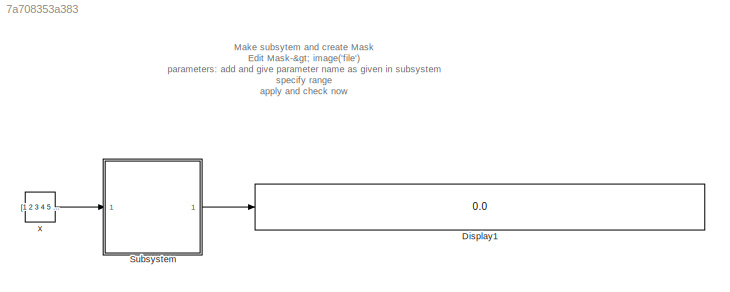
MODEL slx_7a708353a383
KIND model
CONFIG AbsTol = auto
CONFIG FixedStep = auto
CONFIG MaxStep = auto
CONFIG MinStep = auto
CONFIG RelTol = 1e-3
CONFIG SampleTimeConstraint = Unconstrained
CONFIG Solver = FixedStepDiscrete
CONFIG SolverMode = Auto
CONFIG SolverName = FixedStepDiscrete
CONFIG StartTime = 0.0
CONFIG StopTime = Inf
BLOCK [Display] Display1
  Decimation = 1
  Ports = [1]
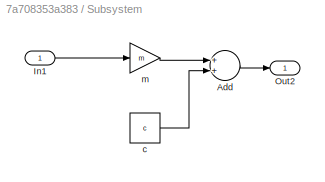
BLOCK [SubSystem] Subsystem
  Ports = [1, 1]
  RequestExecContextInheritance = off
  Variant = off
BLOCK [Sum] Subsystem/Add
  InputSameDT = off
  OutDataTypeStr = Inherit: Inherit via internal rule
  Ports = [2, 1]
  SaturateOnIntegerOverflow = off
BLOCK [Inport] Subsystem/In1
  IconDisplay = Port number
BLOCK [Outport] Subsystem/Out2
  IconDisplay = Port number
BLOCK [Constant] Subsystem/c
  Value = c
BLOCK [Gain] Subsystem/m
  Gain = m
  OutDataTypeStr = Inherit: Inherit via internal rule
  ParamDataTypeStr = Inherit: Inherit via internal rule
  SaturateOnIntegerOverflow = off
BLOCK [Constant] x
  Value = [1 2 3 4 5 6 7 8 9]
ANNOTATION (root): Make subsytem and create Mask Edit Mask-> image('file') parameters: add and give parameter name as given in subsystem specify range apply and check now
LINE Subsystem/Add:1 -> Subsystem/Out2:1
LINE Subsystem/In1:1 -> Subsystem/m:1
LINE Subsystem/c:1 -> Subsystem/Add:2
LINE Subsystem/m:1 -> Subsystem/Add:1
LINE Subsystem:1 -> Display1:1
LINE x:1 -> Subsystem:1
